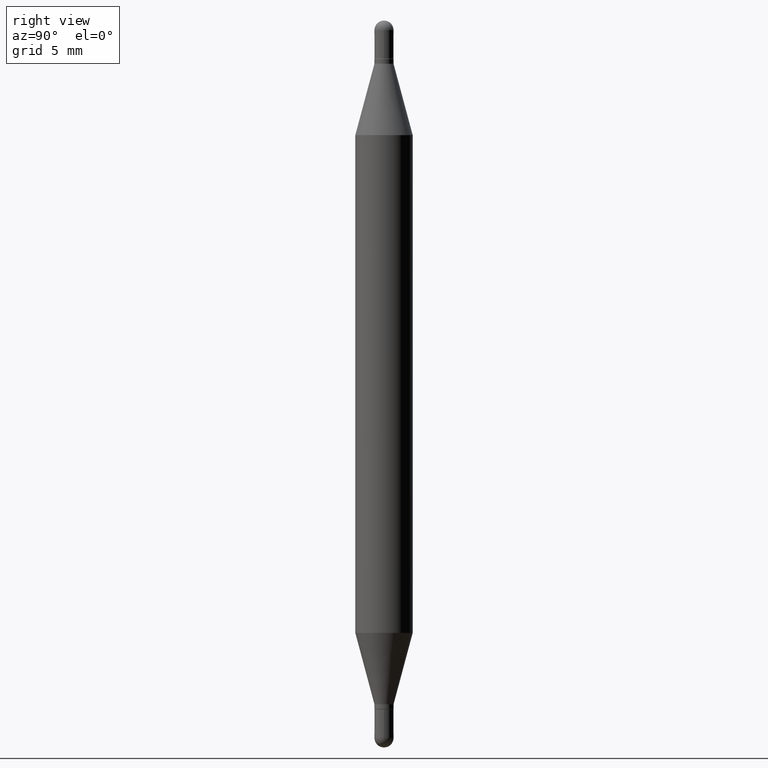
[diagram: clean part render]
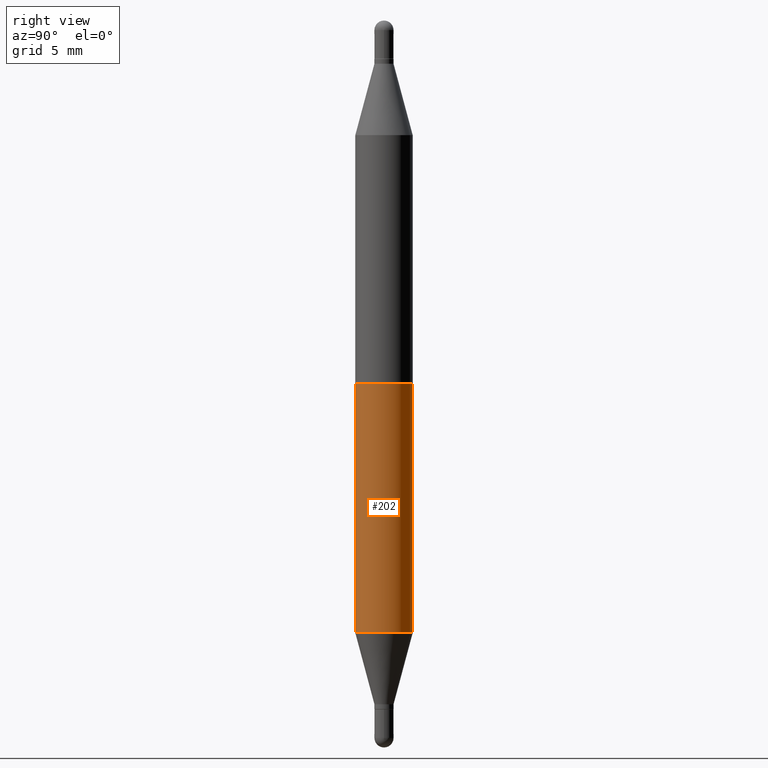
[diagram: same view with one face highlighted and labeled with its STEP entity id]
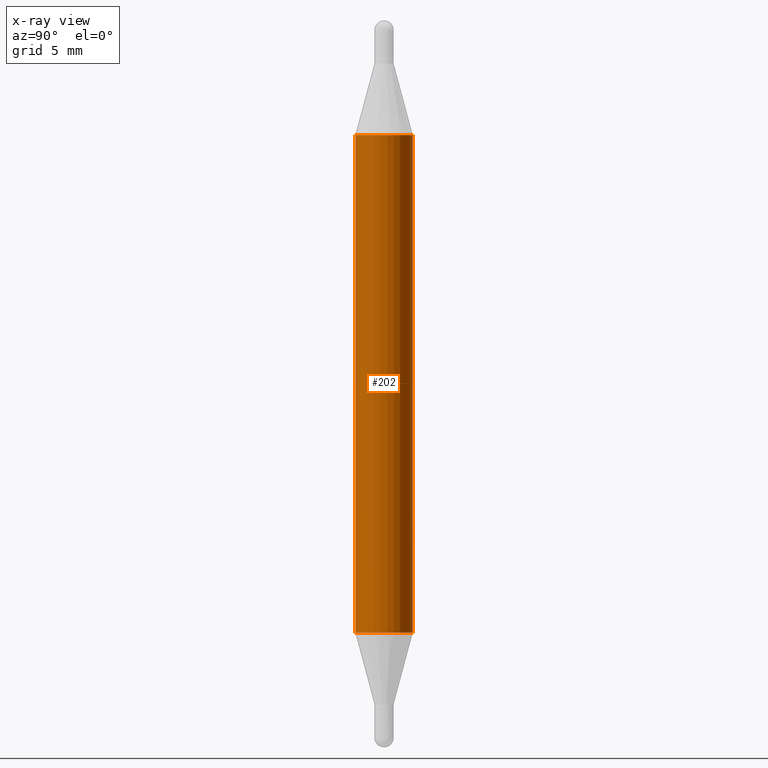
[diagram: x-ray of the same camera — body ghosted, the highlighted face saturated]
A machine part, right view. The second image highlights one B-rep face of the part: STEP entity #202.
The next image is the same camera in x-ray: the body ghosted, the highlighted face saturated — about 0% of this face is hidden behind the body in this view.
In plain terms, the highlighted cylindrical surface (edge-blend (fillet) strip) has radius 1.4999 mm, axis along (-0, -0, -1).
Its self-contained STEP definition (entity closure, byte-faithful):
#105 = CARTESIAN_POINT ( 'NONE',  ( 3.075301140826860747E-29, -8.389968426939312005E-16, -0.2358561992778358263 ) ) ;
#111 = EDGE_CURVE ( 'NONE', #1000, #1034, #466, .T. ) ;
#117 = CARTESIAN_POINT ( 'NONE',  ( -4.123439461173434150E-16, -0.05905000000000085181, -0.2358561992778356042 ) ) ;
#188 = CIRCLE ( 'NONE', #227, 0.05905000000000002608 ) ;
#196 = CARTESIAN_POINT ( 'NONE',  ( 4.051124067684272586E-16, 0.05904999999999561294, -1.260243800722164353 ) ) ;
#199 = AXIS2_PLACEMENT_3D ( 'NONE', #731, #636, #716 ) ;
#202 = ADVANCED_FACE ( 'NONE', ( #1074 ), #297, .T. ) ;
#211 = CARTESIAN_POINT ( 'NONE',  ( 4.051124067684090161E-16, 0.05904999999999480109, -1.496100000000000207 ) ) ;
#227 = AXIS2_PLACEMENT_3D ( 'NONE', #105, #796, #1059 ) ;
#297 = CYLINDRICAL_SURFACE ( 'NONE', #199, 0.05905000000000001914 ) ;
#422 = ORIENTED_EDGE ( 'NONE', *, *, #554, .T. ) ;
#432 = LINE ( 'NONE', #767, #902 ) ;
#466 = LINE ( 'NONE', #211, #938 ) ;
#514 = DIRECTION ( 'NONE',  ( -6.982962677686265922E-15, -1.000000000000000000, 4.626330217890367758E-15 ) ) ;
#548 = DIRECTION ( 'NONE',  ( -2.440243022076050081E-29, -3.472130846700455674E-15, -1.000000000000000000 ) ) ;
#554 = EDGE_CURVE ( 'NONE', #1019, #1064, #432, .T. ) ;
#555 = EDGE_CURVE ( 'NONE', #1064, #1034, #557, .T. ) ;
#557 = CIRCLE ( 'NONE', #718, 0.05905000000000002608 ) ;
#592 = CARTESIAN_POINT ( 'NONE',  ( 4.051124067684397324E-16, 0.05904999999999918647, -0.2358561992778360206 ) ) ;
#636 = DIRECTION ( 'NONE',  ( -2.440243022076049801E-29, -3.472130846700455674E-15, -1.000000000000000000 ) ) ;
#716 = DIRECTION ( 'NONE',  ( -6.982962677686265922E-15, -1.000000000000000000, 4.626330217890367758E-15 ) ) ;
#718 = AXIS2_PLACEMENT_3D ( 'NONE', #855, #777, #514 ) ;
#721 = ORIENTED_EDGE ( 'NONE', *, *, #555, .T. ) ;
#731 = CARTESIAN_POINT ( 'NONE',  ( 0.000000000000000000, -5.214728217544379106E-15, -1.496099999999999985 ) ) ;
#767 = CARTESIAN_POINT ( 'NONE',  ( -4.123439461173741313E-16, -0.05905000000000523025, -1.496099999999999541 ) ) ;
#777 = DIRECTION ( 'NONE',  ( -2.440243022076049801E-29, 3.498964959120518163E-15, 1.000000000000000000 ) ) ;
#796 = DIRECTION ( 'NONE',  ( 2.440243022076049801E-29, 3.472130846700455674E-15, 1.000000000000000000 ) ) ;
#801 = CARTESIAN_POINT ( 'NONE',  ( -4.123439461173434150E-16, -0.05905000000000443922, -1.260243800722163909 ) ) ;
#839 = ORIENTED_EDGE ( 'NONE', *, *, #1096, .F. ) ;
#853 = ORIENTED_EDGE ( 'NONE', *, *, #111, .F. ) ;
#855 = CARTESIAN_POINT ( 'NONE',  ( 3.075301140826860747E-29, -4.409548898675713398E-15, -1.260243800722164131 ) ) ;
#875 = DIRECTION ( 'NONE',  ( -2.440243022076050081E-29, -3.472130846700455674E-15, -1.000000000000000000 ) ) ;
#902 = VECTOR ( 'NONE', #875, 39.37007874015748143 ) ;
#938 = VECTOR ( 'NONE', #548, 39.37007874015748143 ) ;
#968 = EDGE_LOOP ( 'NONE', ( #853, #839, #422, #721 ) ) ;
#1000 = VERTEX_POINT ( 'NONE', #592 ) ;
#1019 = VERTEX_POINT ( 'NONE', #117 ) ;
#1034 = VERTEX_POINT ( 'NONE', #196 ) ;
#1059 = DIRECTION ( 'NONE',  ( -6.982962677686265922E-15, -1.000000000000000000, 3.469747663417775819E-15 ) ) ;
#1064 = VERTEX_POINT ( 'NONE', #801 ) ;
#1074 = FACE_OUTER_BOUND ( 'NONE', #968, .T. ) ;
#1096 = EDGE_CURVE ( 'NONE', #1019, #1000, #188, .T. ) ;